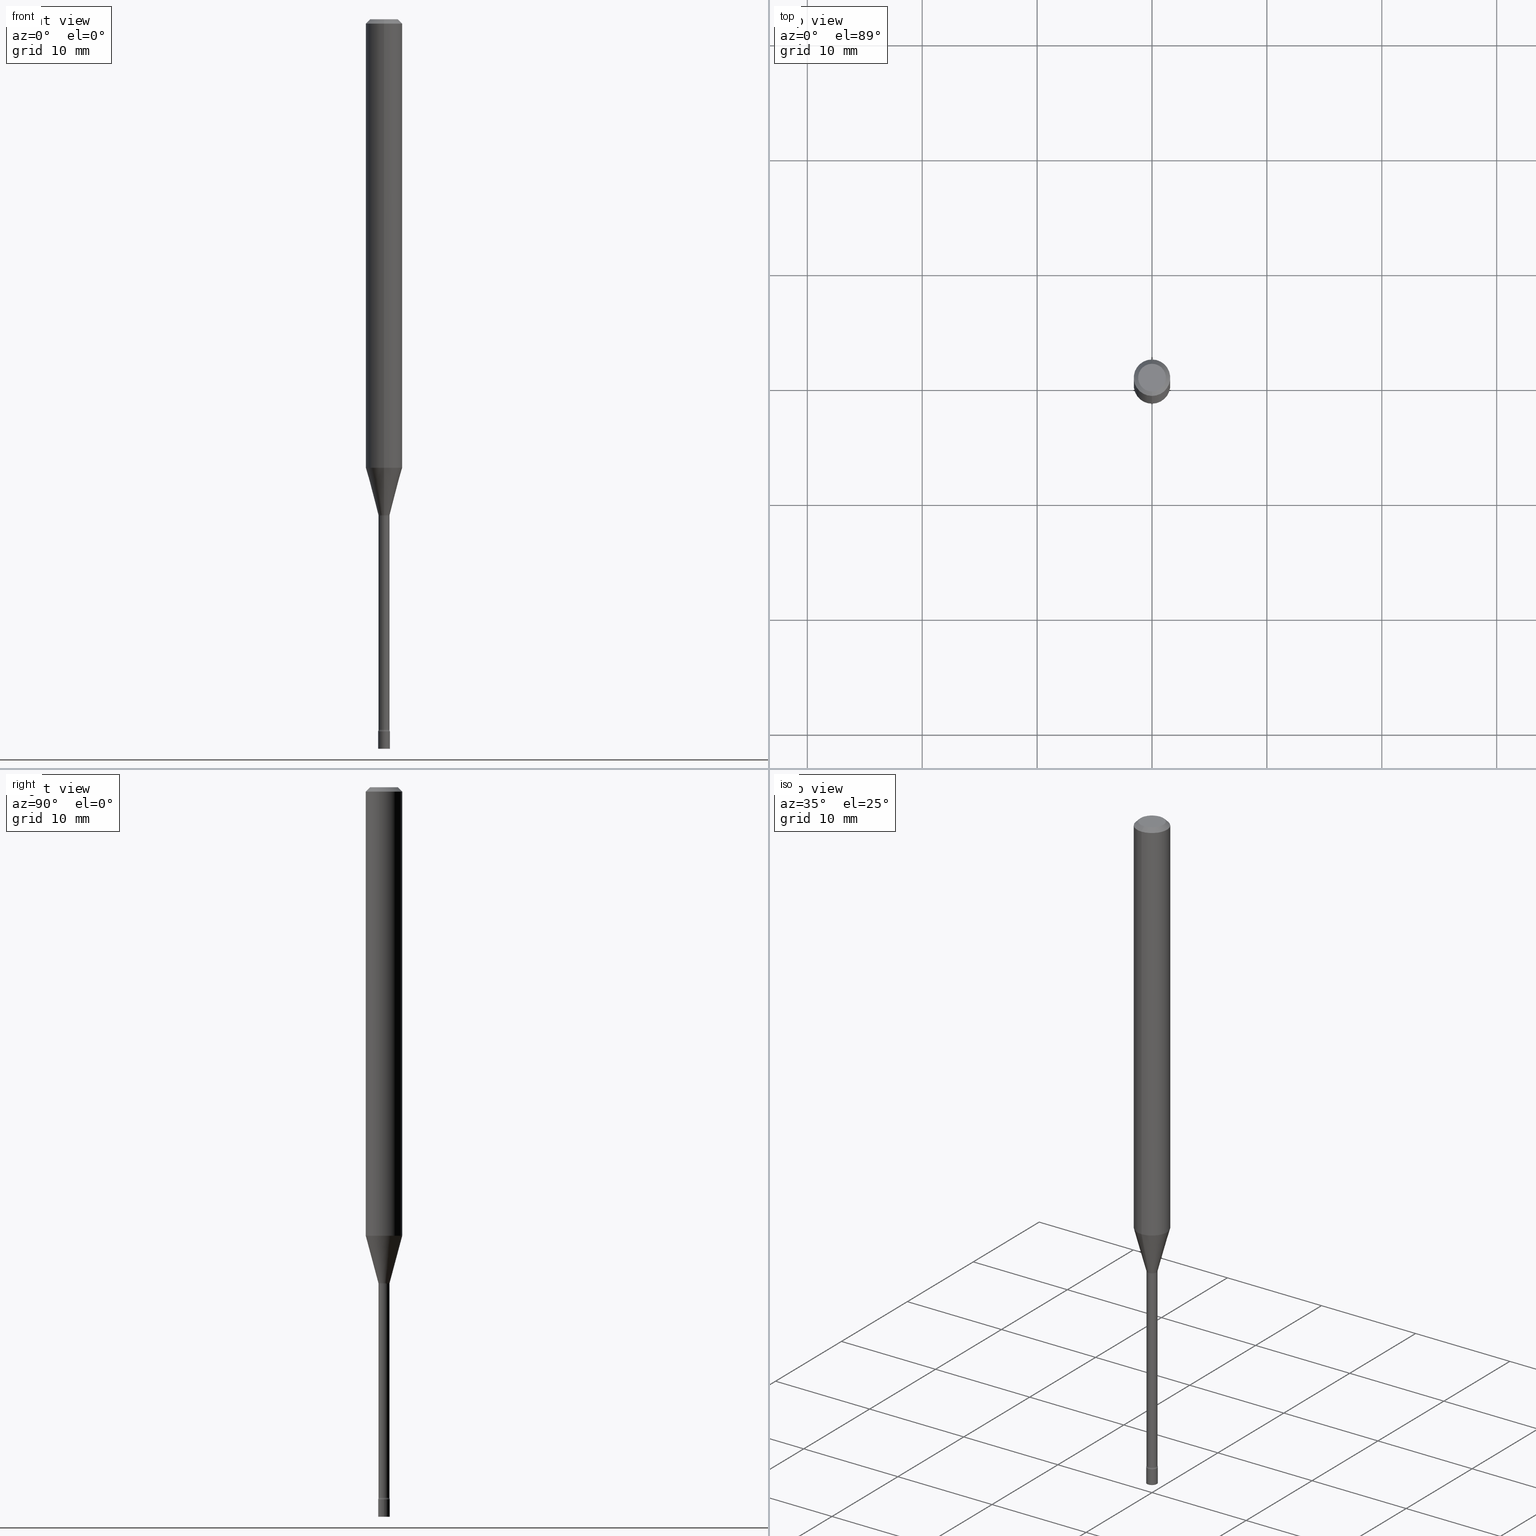
[diagram: canonical four-view strip — front | top / right | iso, engineering-drawing reading convention]
A machine part, canonical four-view strip (front | top / right | iso — engineering-drawing reading convention). The complete STEP part file that produces these views, byte-faithful:
ISO-10303-21;
HEADER;
FILE_DESCRIPTION (( 'STEP AP203' ),
    '1' );
FILE_NAME ('03650.STEP',
    '2024-03-08T22:21:16',
    ( '' ),
    ( '' ),
    'SwSTEP 2.0',
    'SolidWorks 2023',
    '' );
FILE_SCHEMA (( 'CONFIG_CONTROL_DESIGN' ));
ENDSEC;

DATA;
#1 = CARTESIAN_POINT ( 'NONE',  ( 2.401634446869740394E-16, 0.03379999999999159371, -2.434121224617320944 ) ) ;
#2 = ORIENTED_EDGE ( 'NONE', *, *, #63, .T. ) ;
#3 = ORIENTED_EDGE ( 'NONE', *, *, #240, .F. ) ;
#4 = EDGE_CURVE ( 'NONE', #278, #88, #257, .T. ) ;
#5 = CARTESIAN_POINT ( 'NONE',  ( 4.162051851151586637E-29, -5.942519755368827398E-15, -1.701974787463810923 ) ) ;
#6 = ORIENTED_EDGE ( 'NONE', *, *, #165, .F. ) ;
#7 = CARTESIAN_POINT ( 'NONE',  ( 1.396592535537864759E-16, 0.01999999999999127129, -2.500000000000000000 ) ) ;
#8 = VERTEX_POINT ( 'NONE', #252 ) ;
#9 = ADVANCED_FACE ( 'NONE', ( #419 ), #294, .T. ) ;
#10 = DIRECTION ( 'NONE',  ( -2.445425091962523904E-29, 3.491543940097986004E-15, 1.000000000000000000 ) ) ;
#11 = ORIENTED_EDGE ( 'NONE', *, *, #21, .T. ) ;
#12 = ADVANCED_FACE ( 'NONE', ( #423 ), #333, .T. ) ;
#13 = DIRECTION ( 'NONE',  ( 6.982962677686265922E-15, 1.000000000000000000, -3.491543940097986004E-15 ) ) ;
#14 = AXIS2_PLACEMENT_3D ( 'NONE', #158, #367, #443 ) ;
#15 = SECURITY_CLASSIFICATION ( '', '', #303 ) ;
#16 = APPROVAL_ROLE ( '' ) ;
#17 = LINE ( 'NONE', #64, #121 ) ;
#18 = PERSON_AND_ORGANIZATION ( #477, #407 ) ;
#19 = VERTEX_POINT ( 'NONE', #500 ) ;
#20 = APPLICATION_PROTOCOL_DEFINITION ( 'international standard', 'config_control_design', 1994, #109 ) ;
#21 = EDGE_CURVE ( 'NONE', #19, #8, #416, .T. ) ;
#22 = DIRECTION ( 'NONE',  ( -6.982962677686265922E-15, -1.000000000000000000, 3.491543940097985609E-15 ) ) ;
#23 = CIRCLE ( 'NONE', #86, 0.01500000000000001853 ) ;
#24 = CC_DESIGN_APPROVAL ( #73, ( #15 ) ) ;
#25 = CARTESIAN_POINT ( 'NONE',  ( 4.162126251656327251E-29, -5.942413209611424938E-15, -1.701974787463810923 ) ) ;
#26 = LINE ( 'NONE', #93, #269 ) ;
#27 = PERSON_AND_ORGANIZATION_ROLE ( 'creator' ) ;
#28 = APPROVAL_ROLE ( '' ) ;
#29 = CARTESIAN_POINT ( 'NONE',  ( 5.966943887091733341E-29, -8.519214466777275048E-15, -2.440000000000000391 ) ) ;
#30 = SHAPE_DEFINITION_REPRESENTATION ( #343, #453 ) ;
#31 = PLANE ( 'NONE',  #261 ) ;
#32 = AXIS2_PLACEMENT_3D ( 'NONE', #7, #204, #241 ) ;
#33 = AXIS2_PLACEMENT_3D ( 'NONE', #494, #292, #91 ) ;
#34 =( GEOMETRIC_REPRESENTATION_CONTEXT ( 3 ) GLOBAL_UNCERTAINTY_ASSIGNED_CONTEXT ( ( #221 ) ) GLOBAL_UNIT_ASSIGNED_CONTEXT ( ( #379, #61, #206 ) ) REPRESENTATION_CONTEXT ( 'NONE', 'WORKASPACE' ) );
#35 = DIRECTION ( 'NONE',  ( -2.445468806185136597E-29, 3.491481338843145583E-15, 1.000000000000000000 ) ) ;
#36 = EDGE_LOOP ( 'NONE', ( #48, #501, #403, #6 ) ) ;
#37 = EDGE_CURVE ( 'NONE', #193, #365, #26, .T. ) ;
#38 = CARTESIAN_POINT ( 'NONE',  ( 4.152558012344013964E-29, -5.928964584341181996E-15, -1.698092501787273001 ) ) ;
#39 = FACE_OUTER_BOUND ( 'NONE', #85, .T. ) ;
#40 = AXIS2_PLACEMENT_3D ( 'NONE', #182, #236, #192 ) ;
#41 = PRODUCT_DEFINITION_FORMATION_WITH_SPECIFIED_SOURCE ( 'ANY', '', #107, .NOT_KNOWN. ) ;
#42 = PLANE ( 'NONE',  #32 ) ;
#43 = EDGE_LOOP ( 'NONE', ( #155, #188 ) ) ;
#44 = CARTESIAN_POINT ( 'NONE',  ( 5.966837224388557990E-29, -8.519367213839086196E-15, -2.440000000000000391 ) ) ;
#45 = VERTEX_POINT ( 'NONE', #210 ) ;
#46 = EDGE_CURVE ( 'NONE', #159, #193, #212, .T. ) ;
#47 = DIRECTION ( 'NONE',  ( 7.105427357601005014E-15, 1.000000000000000000, 0.000000000000000000 ) ) ;
#48 = ORIENTED_EDGE ( 'NONE', *, *, #98, .T. ) ;
#49 = AXIS2_PLACEMENT_3D ( 'NONE', #96, #249, #386 ) ;
#50 = FACE_OUTER_BOUND ( 'NONE', #401, .T. ) ;
#51 = ORIENTED_EDGE ( 'NONE', *, *, #37, .T. ) ;
#52 = CARTESIAN_POINT ( 'NONE',  ( 3.668137637943792951E-31, -5.237315910146990666E-17, -0.01500000000000003067 ) ) ;
#53 = EDGE_CURVE ( 'NONE', #45, #491, #469, .T. ) ;
#54 = VERTEX_POINT ( 'NONE', #421 ) ;
#55 = DIRECTION ( 'NONE',  ( -2.445425091962523904E-29, 3.491543940097986004E-15, 1.000000000000000000 ) ) ;
#56 = ORIENTED_EDGE ( 'NONE', *, *, #186, .T. ) ;
#57 = DIRECTION ( 'NONE',  ( -2.445468806185136597E-29, 3.491481338843145583E-15, 1.000000000000000000 ) ) ;
#58 = DIRECTION ( 'NONE',  ( -2.445425091962523904E-29, 3.491543940097986004E-15, 1.000000000000000000 ) ) ;
#59 = CIRCLE ( 'NONE', #33, 0.01499999999999999771 ) ;
#60 = AXIS2_PLACEMENT_3D ( 'NONE', #139, #420, #136 ) ;
#61 =( NAMED_UNIT ( * ) PLANE_ANGLE_UNIT ( ) SI_UNIT ( $, .RADIAN. ) );
#62 = DIRECTION ( 'NONE',  ( -2.445425091962523904E-29, 3.491543940097986004E-15, 1.000000000000000000 ) ) ;
#63 = EDGE_CURVE ( 'NONE', #8, #128, #17, .T. ) ;
#64 = CARTESIAN_POINT ( 'NONE',  ( -1.312796983405021220E-16, -0.01880000000000004584, 6.564102607384229912E-17 ) ) ;
#65 = DIRECTION ( 'NONE',  ( -2.445425091962523904E-29, 3.491543940097986004E-15, 1.000000000000000000 ) ) ;
#66 = PERSON_AND_ORGANIZATION ( #477, #407 ) ;
#67 = EDGE_LOOP ( 'NONE', ( #317, #442, #459, #168 ) ) ;
#68 = ADVANCED_FACE ( 'NONE', ( #383 ), #259, .F. ) ;
#69 = DIRECTION ( 'NONE',  ( -6.982962677686265922E-15, -1.000000000000000000, 0.000000000000000000 ) ) ;
#70 = DIRECTION ( 'NONE',  ( -2.445425091962523904E-29, 3.491543940097986004E-15, 1.000000000000000000 ) ) ;
#71 = AXIS2_PLACEMENT_3D ( 'NONE', #517, #116, #510 ) ;
#72 = DIRECTION ( 'NONE',  ( -2.445425091962523904E-29, 3.491543940097986004E-15, 1.000000000000000000 ) ) ;
#73 = APPROVAL ( #389, 'UNSPECIFIED' ) ;
#74 = DIRECTION ( 'NONE',  ( -2.445425091962523904E-29, 3.491543940097986004E-15, 1.000000000000000000 ) ) ;
#75 = DIRECTION ( 'NONE',  ( 6.982962677686265922E-15, 1.000000000000000000, -3.483106191921935554E-15 ) ) ;
#76 = VECTOR ( 'NONE', #262, 39.37007874015748143 ) ;
#77 = AXIS2_PLACEMENT_3D ( 'NONE', #38, #74, #307 ) ;
#78 = CIRCLE ( 'NONE', #60, 0.06250000000000000000 ) ;
#79 = DIRECTION ( 'NONE',  ( 1.000000000000000000, -7.105427357601001070E-15, 4.926316275186346245E-29 ) ) ;
#80 = EDGE_CURVE ( 'NONE', #113, #88, #304, .T. ) ;
#81 = ORIENTED_EDGE ( 'NONE', *, *, #466, .F. ) ;
#82 = DIRECTION ( 'NONE',  ( 2.445425091962523904E-29, -3.491543940097986004E-15, -1.000000000000000000 ) ) ;
#83 = EDGE_LOOP ( 'NONE', ( #120, #111, #205, #326 ) ) ;
#84 = CARTESIAN_POINT ( 'NONE',  ( 5.952567525274821981E-29, -8.498688832233400382E-15, -2.434121224617320944 ) ) ;
#85 = EDGE_LOOP ( 'NONE', ( #228, #507, #484, #493 ) ) ;
#86 = AXIS2_PLACEMENT_3D ( 'NONE', #238, #359, #322 ) ;
#87 = DIRECTION ( 'NONE',  ( -2.445425091962523904E-29, 3.491543940097986004E-15, 1.000000000000000000 ) ) ;
#88 = VERTEX_POINT ( 'NONE', #505 ) ;
#89 = LINE ( 'NONE', #99, #169 ) ;
#90 = VERTEX_POINT ( 'NONE', #217 ) ;
#91 = DIRECTION ( 'NONE',  ( -6.982962677686266711E-15, -1.000000000000000000, 0.000000000000000000 ) ) ;
#92 = MANIFOLD_SOLID_BREP ( 'Body-Move/Copy2[2]', #424 ) ;
#93 = CARTESIAN_POINT ( 'NONE',  ( -4.364351673553916201E-16, -0.06250000000000000000, 2.182214962561241006E-16 ) ) ;
#94 = CARTESIAN_POINT ( 'NONE',  ( 6.113672015462842613E-29, -8.728703347107864943E-15, -2.500000000000000000 ) ) ;
#95 = AXIS2_PLACEMENT_3D ( 'NONE', #84, #197, #319 ) ;
#96 = CARTESIAN_POINT ( 'NONE',  ( 6.113672015462842613E-29, -8.728703347107864943E-15, -2.500000000000000000 ) ) ;
#97 = LOCAL_TIME ( 17, 21, 16.00000000000000000, #418 ) ;
#98 = EDGE_CURVE ( 'NONE', #54, #45, #502, .T. ) ;
#99 = CARTESIAN_POINT ( 'NONE',  ( 1.335820343228991607E-16, 0.01880000000000004584, -6.564102607384229912E-17 ) ) ;
#100 = CARTESIAN_POINT ( 'NONE',  ( -0.02000000000000000042, 1.421085471520200401E-16, -9.837870180509812545E-31 ) ) ;
#101 = ADVANCED_FACE ( 'NONE', ( #428 ), #341, .F. ) ;
#102 = APPROVAL_DATE_TIME ( #301, #150 ) ;
#103 = CARTESIAN_POINT ( 'NONE',  ( 5.952567525274821981E-29, -8.498688832233400382E-15, -2.434121224617320944 ) ) ;
#104 = ADVANCED_FACE ( 'NONE', ( #170 ), #414, .T. ) ;
#105 = DATE_AND_TIME ( #344, #337 ) ;
#106 = CARTESIAN_POINT ( 'NONE',  ( 4.364351673553919652E-16, 0.06249999999999995143, -0.01500000000000024751 ) ) ;
#107 = PRODUCT ( '03650', '03650', '', ( #497 ) ) ;
#108 = LINE ( 'NONE', #515, #330 ) ;
#109 = APPLICATION_CONTEXT ( 'configuration controlled 3d designs of mechanical parts and assemblies' ) ;
#110 = CARTESIAN_POINT ( 'NONE',  ( -4.364351673553541492E-16, -0.06250000000000538458, -1.536909379709239909 ) ) ;
#111 = ORIENTED_EDGE ( 'NONE', *, *, #438, .T. ) ;
#112 = FACE_OUTER_BOUND ( 'NONE', #134, .T. ) ;
#113 = VERTEX_POINT ( 'NONE', #181 ) ;
#114 = AXIS2_PLACEMENT_3D ( 'NONE', #363, #234, #126 ) ;
#115 = DIRECTION ( 'NONE',  ( -2.438088387897960049E-29, 3.491481338843145188E-15, 1.000000000000000000 ) ) ;
#116 = DIRECTION ( 'NONE',  ( -2.445425091962523904E-29, 3.491543940097986004E-15, 1.000000000000000000 ) ) ;
#117 = ORIENTED_EDGE ( 'NONE', *, *, #4, .T. ) ;
#118 = APPROVAL ( #219, 'UNSPECIFIED' ) ;
#119 = DIRECTION ( 'NONE',  ( -6.982962677686265922E-15, -1.000000000000000000, 0.000000000000000000 ) ) ;
#120 = ORIENTED_EDGE ( 'NONE', *, *, #186, .F. ) ;
#121 = VECTOR ( 'NONE', #138, 39.37007874015748143 ) ;
#122 = AXIS2_PLACEMENT_3D ( 'NONE', #29, #356, #190 ) ;
#123 = CIRCLE ( 'NONE', #436, 0.06250000000000000000 ) ;
#124 = CARTESIAN_POINT ( 'NONE',  ( 3.758396761213533964E-29, -5.366186631203552806E-15, -1.536909379709240131 ) ) ;
#125 = ORIENTED_EDGE ( 'NONE', *, *, #260, .T. ) ;
#126 = DIRECTION ( 'NONE',  ( 1.000000000000000000, -6.982962677686284065E-15, 0.000000000000000000 ) ) ;
#127 = APPLICATION_CONTEXT ( 'configuration controlled 3d designs of mechanical parts and assemblies' ) ;
#128 = VERTEX_POINT ( 'NONE', #270 ) ;
#129 = ADVANCED_FACE ( 'NONE', ( #350 ), #314, .T. ) ;
#130 = CARTESIAN_POINT ( 'NONE',  ( 0.000000000000000000, 0.000000000000000000, 0.000000000000000000 ) ) ;
#131 = ORIENTED_EDGE ( 'NONE', *, *, #46, .T. ) ;
#132 = AXIS2_PLACEMENT_3D ( 'NONE', #266, #70, #187 ) ;
#133 = CARTESIAN_POINT ( 'NONE',  ( 3.668137637943792951E-31, -5.237315910146990666E-17, -0.01500000000000003067 ) ) ;
#134 = EDGE_LOOP ( 'NONE', ( #163, #56, #131, #520 ) ) ;
#135 = DIRECTION ( 'NONE',  ( -6.982962677686265133E-15, -1.000000000000000000, 0.000000000000000000 ) ) ;
#136 = DIRECTION ( 'NONE',  ( -6.982962677686265922E-15, -1.000000000000000000, 3.483106191921935554E-15 ) ) ;
#137 = ADVANCED_FACE ( 'NONE', ( #431 ), #152, .T. ) ;
#138 = DIRECTION ( 'NONE',  ( -2.445425091962523904E-29, 3.491543940097986004E-15, 1.000000000000000000 ) ) ;
#139 = CARTESIAN_POINT ( 'NONE',  ( 3.668137637943792951E-31, -5.237315910146990666E-17, -0.01500000000000003067 ) ) ;
#140 = CARTESIAN_POINT ( 'NONE',  ( 5.952461119557742789E-29, -8.498841211276495713E-15, -2.434121224617320944 ) ) ;
#141 = APPROVAL_PERSON_ORGANIZATION ( #209, #150, #16 ) ;
#142 = CARTESIAN_POINT ( 'NONE',  ( 0.000000000000000000, 0.000000000000000000, 0.000000000000000000 ) ) ;
#143 = ADVANCED_FACE ( 'NONE', ( #112 ), #298, .T. ) ;
#144 = CARTESIAN_POINT ( 'NONE',  ( 3.316907271900976096E-16, 0.04749999999999999362, -1.803038058387863553E-16 ) ) ;
#145 = CARTESIAN_POINT ( 'NONE',  ( -1.348487785899068523E-16, -0.01931111260566991533, -1.698092501787273001 ) ) ;
#146 = EDGE_LOOP ( 'NONE', ( #412, #125 ) ) ;
#147 = CIRCLE ( 'NONE', #208, 0.01499999999999999771 ) ;
#148 = FACE_OUTER_BOUND ( 'NONE', #146, .T. ) ;
#149 = DIRECTION ( 'NONE',  ( -2.445425091962523904E-29, 3.491543940097986004E-15, 1.000000000000000000 ) ) ;
#150 = APPROVAL ( #411, 'UNSPECIFIED' ) ;
#151 = ORIENTED_EDGE ( 'NONE', *, *, #318, .F. ) ;
#152 = CYLINDRICAL_SURFACE ( 'NONE', #417, 0.06250000000000000000 ) ;
#153 = CIRCLE ( 'NONE', #434, 0.02000000000000000042 ) ;
#154 = CARTESIAN_POINT ( 'NONE',  ( 4.152558012344013964E-29, -5.928964584341181996E-15, -1.698092501787273001 ) ) ;
#155 = ORIENTED_EDGE ( 'NONE', *, *, #224, .T. ) ;
#156 = DIRECTION ( 'NONE',  ( -2.445425091962523904E-29, 3.491543940097986004E-15, 1.000000000000000000 ) ) ;
#157 = ORIENTED_EDGE ( 'NONE', *, *, #313, .F. ) ;
#158 = CARTESIAN_POINT ( 'NONE',  ( 1.396592535537849721E-16, 0.01999999999999147945, -2.440000000000000391 ) ) ;
#159 = VERTEX_POINT ( 'NONE', #145 ) ;
#160 = AXIS2_PLACEMENT_3D ( 'NONE', #352, #429, #69 ) ;
#161 = CC_DESIGN_SECURITY_CLASSIFICATION ( #15, ( #41 ) ) ;
#162 = DIRECTION ( 'NONE',  ( 7.105427357601000281E-15, 1.000000000000000000, 0.000000000000000000 ) ) ;
#163 = ORIENTED_EDGE ( 'NONE', *, *, #253, .F. ) ;
#164 = DIRECTION ( 'NONE',  ( -6.982962677686265922E-15, -1.000000000000000000, 4.370956789862821150E-15 ) ) ;
#165 = EDGE_CURVE ( 'NONE', #54, #248, #394, .T. ) ;
#166 = ORIENTED_EDGE ( 'NONE', *, *, #247, .T. ) ;
#167 = CARTESIAN_POINT ( 'NONE',  ( -3.773273898774340269E-16, -0.04749999999999999362, 1.369373997863902348E-16 ) ) ;
#168 = ORIENTED_EDGE ( 'NONE', *, *, #46, .F. ) ;
#169 = VECTOR ( 'NONE', #55, 39.37007874015748143 ) ;
#170 = FACE_OUTER_BOUND ( 'NONE', #354, .T. ) ;
#171 = CARTESIAN_POINT ( 'NONE',  ( 3.668137637943792951E-31, -5.237315910146990666E-17, -0.01500000000000003067 ) ) ;
#172 = DIRECTION ( 'NONE',  ( 4.937700262164548042E-15, 0.7071067811865451302, -0.7071067811865499042 ) ) ;
#173 = DIRECTION ( 'NONE',  ( -6.982962677686265922E-15, -1.000000000000000000, 3.483106191921935554E-15 ) ) ;
#174 = EDGE_LOOP ( 'NONE', ( #368, #267 ) ) ;
#175 = PERSON_AND_ORGANIZATION_ROLE ( 'design_owner' ) ;
#176 = AXIS2_PLACEMENT_3D ( 'NONE', #52, #486, #400 ) ;
#177 = CIRCLE ( 'NONE', #519, 0.02000000000000000042 ) ;
#178 = DATE_AND_TIME ( #214, #348 ) ;
#179 = ORIENTED_EDGE ( 'NONE', *, *, #224, .F. ) ;
#180 = PERSON_AND_ORGANIZATION_ROLE ( 'design_supplier' ) ;
#181 = CARTESIAN_POINT ( 'NONE',  ( 3.840629472727447874E-16, 0.04749999999999999362, -1.947592745229184119E-16 ) ) ;
#182 = CARTESIAN_POINT ( 'NONE',  ( 4.162126251656327251E-29, -5.942413209611424938E-15, -1.701974787463810923 ) ) ;
#183 = CIRCLE ( 'NONE', #485, 0.01879999999999999727 ) ;
#184 = CIRCLE ( 'NONE', #478, 0.01931111260566398605 ) ;
#185 = DESIGN_CONTEXT ( 'detailed design', #127, 'design' ) ;
#186 = EDGE_CURVE ( 'NONE', #265, #159, #184, .T. ) ;
#187 = DIRECTION ( 'NONE',  ( -6.982962677686266711E-15, -1.000000000000000000, 3.491543940097986398E-15 ) ) ;
#188 = ORIENTED_EDGE ( 'NONE', *, *, #240, .T. ) ;
#189 = CARTESIAN_POINT ( 'NONE',  ( 0.02000000000000000042, -1.396592535537253145E-16, 9.752353551591871936E-31 ) ) ;
#190 = DIRECTION ( 'NONE',  ( 1.000000000000000000, -6.982962677686284065E-15, 0.000000000000000000 ) ) ;
#191 = CIRCLE ( 'NONE', #122, 0.02000000000000000042 ) ;
#192 = DIRECTION ( 'NONE',  ( -6.982962677686265922E-15, -1.000000000000000000, 3.491543940097986004E-15 ) ) ;
#193 = VERTEX_POINT ( 'NONE', #110 ) ;
#194 = DIRECTION ( 'NONE',  ( -2.445425091962523904E-29, 3.491543940097986004E-15, 1.000000000000000000 ) ) ;
#195 = PERSON_AND_ORGANIZATION_ROLE ( 'classification_officer' ) ;
#196 = ORIENTED_EDGE ( 'NONE', *, *, #408, .T. ) ;
#197 = DIRECTION ( 'NONE',  ( -2.445425091962523904E-29, 3.491543940097986004E-15, 1.000000000000000000 ) ) ;
#198 = ORIENTED_EDGE ( 'NONE', *, *, #63, .F. ) ;
#199 = VECTOR ( 'NONE', #172, 39.37007874015748143 ) ;
#200 = CIRCLE ( 'NONE', #114, 0.02000000000000000042 ) ;
#201 = CC_DESIGN_APPROVAL ( #118, ( #41 ) ) ;
#202 = DIRECTION ( 'NONE',  ( -4.851104656540964275E-15, -0.7071067811865500152, -0.7071067811865450192 ) ) ;
#203 = ORIENTED_EDGE ( 'NONE', *, *, #21, .F. ) ;
#204 = DIRECTION ( 'NONE',  ( 2.438088387897960049E-29, -3.491481338843145188E-15, -1.000000000000000000 ) ) ;
#205 = ORIENTED_EDGE ( 'NONE', *, *, #297, .T. ) ;
#206 =( NAMED_UNIT ( * ) SI_UNIT ( $, .STERADIAN. ) SOLID_ANGLE_UNIT ( ) );
#207 = ORIENTED_EDGE ( 'NONE', *, *, #80, .F. ) ;
#208 = AXIS2_PLACEMENT_3D ( 'NONE', #1, #79, #162 ) ;
#209 = PERSON_AND_ORGANIZATION ( #477, #407 ) ;
#210 = CARTESIAN_POINT ( 'NONE',  ( -0.02000000000000000042, -8.481850359790549832E-15, -2.500000000000000000 ) ) ;
#211 = DIRECTION ( 'NONE',  ( 1.000000000000000000, 0.000000000000000000, 0.000000000000000000 ) ) ;
#212 = LINE ( 'NONE', #296, #364 ) ;
#213 = DIRECTION ( 'NONE',  ( -6.982962677686265922E-15, -1.000000000000000000, 3.491543940097986004E-15 ) ) ;
#214 = CALENDAR_DATE ( 2024, 8, 3 ) ;
#215 = EDGE_CURVE ( 'NONE', #159, #265, #503, .T. ) ;
#216 = CIRCLE ( 'NONE', #518, 0.01500000000000001853 ) ;
#217 = CARTESIAN_POINT ( 'NONE',  ( 1.421085471520796731E-16, 0.01999999999999147945, -2.440000000000000391 ) ) ;
#218 = CC_DESIGN_APPROVAL ( #150, ( #432 ) ) ;
#219 = APPROVAL_STATUS ( 'not_yet_approved' ) ;
#220 = CARTESIAN_POINT ( 'NONE',  ( 5.966837224388557990E-29, -8.519367213839086196E-15, -2.440000000000000391 ) ) ;
#221 = UNCERTAINTY_MEASURE_WITH_UNIT (LENGTH_MEASURE( 1.000000000000000082E-05 ), #379, 'distance_accuracy_value', 'NONE');
#222 = APPROVAL_DATE_TIME ( #509, #73 ) ;
#223 = CARTESIAN_POINT ( 'NONE',  ( 0.02000000000000000042, -8.658873720331001644E-15, -2.440000000000000391 ) ) ;
#224 = EDGE_CURVE ( 'NONE', #113, #447, #487, .T. ) ;
#225 = AXIS2_PLACEMENT_3D ( 'NONE', #140, #332, #135 ) ;
#226 = DIRECTION ( 'NONE',  ( -2.445425091962523904E-29, 3.491543940097986004E-15, 1.000000000000000000 ) ) ;
#227 = TOROIDAL_SURFACE ( 'NONE', #40, 0.03380000000000000365, 0.01500000000000002373 ) ;
#228 = ORIENTED_EDGE ( 'NONE', *, *, #438, .F. ) ;
#229 = LOCAL_TIME ( 17, 21, 16.00000000000000000, #268 ) ;
#230 = DIRECTION ( 'NONE',  ( -6.982962677686265922E-15, -1.000000000000000000, 0.000000000000000000 ) ) ;
#231 = DATE_AND_TIME ( #246, #291 ) ;
#232 = EDGE_CURVE ( 'NONE', #278, #193, #444, .T. ) ;
#233 = DIRECTION ( 'NONE',  ( -6.982962677686265922E-15, -1.000000000000000000, 4.370956789862821150E-15 ) ) ;
#234 = DIRECTION ( 'NONE',  ( -2.445468806185136597E-29, 3.491481338843145583E-15, 1.000000000000000000 ) ) ;
#235 = CIRCLE ( 'NONE', #512, 0.01880000000000009788 ) ;
#236 = DIRECTION ( 'NONE',  ( -2.445425091962523904E-29, 3.491543940097986004E-15, 1.000000000000000000 ) ) ;
#237 = EDGE_LOOP ( 'NONE', ( #196, #117, #315, #449 ) ) ;
#238 = CARTESIAN_POINT ( 'NONE',  ( -2.360241385057541503E-16, -0.03380000000000594335, -1.701974787463810923 ) ) ;
#239 = ORIENTED_EDGE ( 'NONE', *, *, #455, .T. ) ;
#240 = EDGE_CURVE ( 'NONE', #447, #113, #392, .T. ) ;
#241 = DIRECTION ( 'NONE',  ( -1.000000000000000000, 6.982962677686265922E-15, -4.876176775795935793E-29 ) ) ;
#242 = ORIENTED_EDGE ( 'NONE', *, *, #165, .T. ) ;
#243 = AXIS2_PLACEMENT_3D ( 'NONE', #133, #82, #75 ) ;
#244 = DIRECTION ( 'NONE',  ( -6.982962677686265922E-15, -1.000000000000000000, 3.491543940097986004E-15 ) ) ;
#245 = ORIENTED_EDGE ( 'NONE', *, *, #450, .F. ) ;
#246 = CALENDAR_DATE ( 2024, 8, 3 ) ;
#247 = EDGE_CURVE ( 'NONE', #274, #90, #454, .T. ) ;
#248 = VERTEX_POINT ( 'NONE', #223 ) ;
#249 = DIRECTION ( 'NONE',  ( -2.445468806185136597E-29, 3.491481338843145583E-15, 1.000000000000000000 ) ) ;
#250 = AXIS2_PLACEMENT_3D ( 'NONE', #311, #35, #470 ) ;
#251 = PERSON_AND_ORGANIZATION ( #477, #407 ) ;
#252 = CARTESIAN_POINT ( 'NONE',  ( -1.312796983404429574E-16, -0.01880000000000859456, -2.434121224617320944 ) ) ;
#253 = EDGE_CURVE ( 'NONE', #265, #278, #108, .T. ) ;
#254 = EDGE_LOOP ( 'NONE', ( #81, #11, #2, #285 ) ) ;
#255 = CC_DESIGN_PERSON_AND_ORGANIZATION_ASSIGNMENT ( #468, #195, ( #15 ) ) ;
#256 = FACE_OUTER_BOUND ( 'NONE', #83, .T. ) ;
#257 = LINE ( 'NONE', #380, #76 ) ;
#258 = APPROVAL_DATE_TIME ( #105, #118 ) ;
#259 = TOROIDAL_SURFACE ( 'NONE', #415, 0.03380000000000009386, 0.01499999999999999771 ) ;
#260 = EDGE_CURVE ( 'NONE', #491, #248, #191, .T. ) ;
#261 = AXIS2_PLACEMENT_3D ( 'NONE', #480, #115, #471 ) ;
#262 = DIRECTION ( 'NONE',  ( -2.445425091962523904E-29, 3.491543940097986004E-15, 1.000000000000000000 ) ) ;
#263 = DIRECTION ( 'NONE',  ( 1.839019923739597160E-15, 0.2588190451025245142, 0.9659258262890673130 ) ) ;
#264 = EDGE_CURVE ( 'NONE', #128, #452, #357, .T. ) ;
#265 = VERTEX_POINT ( 'NONE', #309 ) ;
#266 = CARTESIAN_POINT ( 'NONE',  ( 7.069953167250996319E-46, -1.009438081707148654E-31, -2.891093736826408239E-17 ) ) ;
#267 = ORIENTED_EDGE ( 'NONE', *, *, #455, .F. ) ;
#268 = COORDINATED_UNIVERSAL_TIME_OFFSET ( 5, 0, .BEHIND. ) ;
#269 = VECTOR ( 'NONE', #58, 39.37007874015748143 ) ;
#270 = CARTESIAN_POINT ( 'NONE',  ( -1.312796983404601645E-16, -0.01880000000000594043, -1.701974787463810923 ) ) ;
#271 = CONICAL_SURFACE ( 'NONE', #176, 0.06250000000000000000, 0.7853981633974483900 ) ;
#272 = AXIS2_PLACEMENT_3D ( 'NONE', #331, #456, #211 ) ;
#273 = DIRECTION ( 'NONE',  ( -2.445468806185136597E-29, 3.491481338843145583E-15, 1.000000000000000000 ) ) ;
#274 = VERTEX_POINT ( 'NONE', #475 ) ;
#275 = CARTESIAN_POINT ( 'NONE',  ( 3.758396761213533964E-29, -5.366186631203552806E-15, -1.536909379709240131 ) ) ;
#276 = CARTESIAN_POINT ( 'NONE',  ( -4.287811248607203282E-16, -0.06250000000000005551, -0.01499999999999981209 ) ) ;
#277 = ADVANCED_FACE ( 'NONE', ( #148 ), #31, .T. ) ;
#278 = VERTEX_POINT ( 'NONE', #396 ) ;
#279 = CIRCLE ( 'NONE', #384, 0.06250000000000000000 ) ;
#280 = CARTESIAN_POINT ( 'NONE',  ( -4.364351673553912750E-16, -0.06250000000000005551, -0.01499999999999981209 ) ) ;
#281 = MANIFOLD_SOLID_BREP ( 'Body-Move/Copy2[1]', #511 ) ;
#282 = ADVANCED_FACE ( 'NONE', ( #39 ), #227, .F. ) ;
#283 = ORIENTED_EDGE ( 'NONE', *, *, #4, .F. ) ;
#284 = PLANE ( 'NONE',  #14 ) ;
#285 = ORIENTED_EDGE ( 'NONE', *, *, #297, .F. ) ;
#286 = ADVANCED_FACE ( 'NONE', ( #390 ), #366, .T. ) ;
#287 = FACE_OUTER_BOUND ( 'NONE', #370, .T. ) ;
#288 = EDGE_LOOP ( 'NONE', ( #283, #405, #51, #467 ) ) ;
#289 = AXIS2_PLACEMENT_3D ( 'NONE', #345, #226, #439 ) ;
#290 = CC_DESIGN_PERSON_AND_ORGANIZATION_ASSIGNMENT ( #427, #27, ( #41 ) ) ;
#291 = LOCAL_TIME ( 17, 21, 16.00000000000000000, #514 ) ;
#292 = DIRECTION ( 'NONE',  ( -1.000000000000000000, 6.982962677686265922E-15, -4.883557194083112340E-29 ) ) ;
#293 = ORIENTED_EDGE ( 'NONE', *, *, #481, .T. ) ;
#294 = CYLINDRICAL_SURFACE ( 'NONE', #462, 0.06250000000000000000 ) ;
#295 = DIRECTION ( 'NONE',  ( -2.445425091962523904E-29, 3.491543940097986004E-15, 1.000000000000000000 ) ) ;
#296 = CARTESIAN_POINT ( 'NONE',  ( -1.348487785899068523E-16, -0.01931111260566991533, -1.698092501787273001 ) ) ;
#297 = EDGE_CURVE ( 'NONE', #452, #128, #183, .T. ) ;
#298 = CONICAL_SURFACE ( 'NONE', #77, 0.01931111260566398605, 0.2617993877991497964 ) ;
#299 = CARTESIAN_POINT ( 'NONE',  ( -0.02000000000000000042, -8.481850359790549832E-15, -2.440000000000000391 ) ) ;
#300 = EDGE_LOOP ( 'NONE', ( #498, #488 ) ) ;
#301 = DATE_AND_TIME ( #504, #97 ) ;
#302 = ORIENTED_EDGE ( 'NONE', *, *, #313, .T. ) ;
#303 = SECURITY_CLASSIFICATION_LEVEL ( 'unclassified' ) ;
#304 = LINE ( 'NONE', #106, #199 ) ;
#305 = ADVANCED_FACE ( 'NONE', ( #316 ), #42, .T. ) ;
#306 = TOROIDAL_SURFACE ( 'NONE', #95, 0.03380000000000009386, 0.01499999999999999771 ) ;
#307 = DIRECTION ( 'NONE',  ( -6.982962677686265922E-15, -1.000000000000000000, 0.000000000000000000 ) ) ;
#308 = DIRECTION ( 'NONE',  ( -2.445468806185136877E-29, 3.491481338843145188E-15, 1.000000000000000000 ) ) ;
#309 = CARTESIAN_POINT ( 'NONE',  ( 2.906514588320701631E-16, 0.01931111260565805676, -1.698092501787273001 ) ) ;
#310 = ORIENTED_EDGE ( 'NONE', *, *, #349, .F. ) ;
#311 = CARTESIAN_POINT ( 'NONE',  ( 0.000000000000000000, 0.000000000000000000, 0.000000000000000000 ) ) ;
#312 = AXIS2_PLACEMENT_3D ( 'NONE', #220, #395, #513 ) ;
#313 = EDGE_CURVE ( 'NONE', #19, #90, #147, .T. ) ;
#314 = CYLINDRICAL_SURFACE ( 'NONE', #425, 0.02000000000000000042 ) ;
#315 = ORIENTED_EDGE ( 'NONE', *, *, #481, .F. ) ;
#316 = FACE_OUTER_BOUND ( 'NONE', #174, .T. ) ;
#317 = ORIENTED_EDGE ( 'NONE', *, *, #215, .T. ) ;
#318 = EDGE_CURVE ( 'NONE', #447, #365, #397, .T. ) ;
#319 = DIRECTION ( 'NONE',  ( -6.982962677686265922E-15, -1.000000000000000000, 3.491543940097986004E-15 ) ) ;
#320 = EDGE_LOOP ( 'NONE', ( #157, #310, #351, #166 ) ) ;
#321 = VECTOR ( 'NONE', #202, 39.37007874015748143 ) ;
#322 = DIRECTION ( 'NONE',  ( -6.982962677686267499E-15, -1.000000000000000000, 0.000000000000000000 ) ) ;
#323 = EDGE_LOOP ( 'NONE', ( #3, #445, #293, #207 ) ) ;
#324 = DIMENSIONAL_EXPONENTS ( 1.000000000000000000, 0.000000000000000000, 0.000000000000000000, 0.000000000000000000, 0.000000000000000000, 0.000000000000000000, 0.000000000000000000 ) ;
#325 = CARTESIAN_POINT ( 'NONE',  ( 4.152558012344013964E-29, -5.928964584341181996E-15, -1.698092501787273001 ) ) ;
#326 = ORIENTED_EDGE ( 'NONE', *, *, #358, .F. ) ;
#327 = ADVANCED_FACE ( 'NONE', ( #287 ), #271, .T. ) ;
#328 = DIRECTION ( 'NONE',  ( -6.982962677686265133E-15, -1.000000000000000000, 0.000000000000000000 ) ) ;
#329 = ORIENTED_EDGE ( 'NONE', *, *, #80, .T. ) ;
#330 = VECTOR ( 'NONE', #263, 39.37007874015748143 ) ;
#331 = CARTESIAN_POINT ( 'NONE',  ( 0.000000000000000000, 0.000000000000000000, 0.000000000000000000 ) ) ;
#332 = DIRECTION ( 'NONE',  ( -2.445425091962523904E-29, 3.491543940097986004E-15, 1.000000000000000000 ) ) ;
#333 = CYLINDRICAL_SURFACE ( 'NONE', #476, 0.01880000000000004584 ) ;
#334 = CC_DESIGN_DATE_AND_TIME_ASSIGNMENT ( #231, #474, ( #15 ) ) ;
#335 = DIRECTION ( 'NONE',  ( -1.807323732225326984E-15, -0.2588190451025177419, 0.9659258262890690894 ) ) ;
#336 = CONICAL_SURFACE ( 'NONE', #406, 0.01931111260566398605, 0.2617993877991497964 ) ;
#337 = LOCAL_TIME ( 17, 21, 16.00000000000000000, #508 ) ;
#338 = APPLICATION_PROTOCOL_DEFINITION ( 'international standard', 'config_control_design', 1994, #127 ) ;
#339 = DIRECTION ( 'NONE',  ( -2.445468806185136877E-29, 3.491481338843145188E-15, 1.000000000000000000 ) ) ;
#340 = CARTESIAN_POINT ( 'NONE',  ( 1.335820343229586704E-16, 0.01879999999999405758, -1.701974787463810923 ) ) ;
#341 = PLANE ( 'NONE',  #374 ) ;
#342 = PRODUCT_RELATED_PRODUCT_CATEGORY ( 'detail', '', ( #107 ) ) ;
#343 = PRODUCT_DEFINITION_SHAPE ( 'NONE', 'NONE',  #432 ) ;
#344 = CALENDAR_DATE ( 2024, 8, 3 ) ;
#345 = CARTESIAN_POINT ( 'NONE',  ( 7.069953167250996319E-46, -1.009438081707148654E-31, -2.891093736826408239E-17 ) ) ;
#346 = AXIS2_PLACEMENT_3D ( 'NONE', #130, #87, #244 ) ;
#347 = DIRECTION ( 'NONE',  ( -6.982962677686265922E-15, -1.000000000000000000, 3.491543940097985609E-15 ) ) ;
#348 = LOCAL_TIME ( 17, 21, 16.00000000000000000, #422 ) ;
#349 = EDGE_CURVE ( 'NONE', #8, #19, #235, .T. ) ;
#350 = FACE_OUTER_BOUND ( 'NONE', #36, .T. ) ;
#351 = ORIENTED_EDGE ( 'NONE', *, *, #450, .T. ) ;
#352 = CARTESIAN_POINT ( 'NONE',  ( 4.162051851151586637E-29, -5.942519755368827398E-15, -1.701974787463810923 ) ) ;
#353 = CC_DESIGN_PERSON_AND_ORGANIZATION_ASSIGNMENT ( #381, #175, ( #107 ) ) ;
#354 = EDGE_LOOP ( 'NONE', ( #495, #239, #242, #362 ) ) ;
#355 = PERSON_AND_ORGANIZATION ( #477, #407 ) ;
#356 = DIRECTION ( 'NONE',  ( -2.445468806185136597E-29, 3.491481338843145583E-15, 1.000000000000000000 ) ) ;
#357 = CIRCLE ( 'NONE', #160, 0.01879999999999999727 ) ;
#358 = EDGE_CURVE ( 'NONE', #159, #128, #23, .T. ) ;
#359 = DIRECTION ( 'NONE',  ( -1.000000000000000000, 6.982962677686265922E-15, -4.883557194083112340E-29 ) ) ;
#360 = ORIENTED_EDGE ( 'NONE', *, *, #264, .F. ) ;
#361 = FACE_OUTER_BOUND ( 'NONE', #320, .T. ) ;
#362 = ORIENTED_EDGE ( 'NONE', *, *, #260, .F. ) ;
#363 = CARTESIAN_POINT ( 'NONE',  ( 5.966943887091733341E-29, -8.519214466777275048E-15, -2.440000000000000391 ) ) ;
#364 = VECTOR ( 'NONE', #335, 39.37007874015748143 ) ;
#365 = VERTEX_POINT ( 'NONE', #280 ) ;
#366 = CONICAL_SURFACE ( 'NONE', #243, 0.06250000000000000000, 0.7853981633974483900 ) ;
#367 = DIRECTION ( 'NONE',  ( -2.445425091962523624E-29, 3.491543940097986004E-15, 1.000000000000000000 ) ) ;
#368 = ORIENTED_EDGE ( 'NONE', *, *, #98, .F. ) ;
#369 = DIRECTION ( 'NONE',  ( -2.445425091962523904E-29, 3.491543940097986004E-15, 1.000000000000000000 ) ) ;
#370 = EDGE_LOOP ( 'NONE', ( #151, #179, #329, #410 ) ) ;
#371 = DIRECTION ( 'NONE',  ( -6.982962677686265922E-15, -1.000000000000000000, 3.491543940097986004E-15 ) ) ;
#372 = DIRECTION ( 'NONE',  ( 2.445425091962523624E-29, -3.491543940097986004E-15, -1.000000000000000000 ) ) ;
#373 = EDGE_CURVE ( 'NONE', #90, #274, #153, .T. ) ;
#374 = AXIS2_PLACEMENT_3D ( 'NONE', #144, #372, #13 ) ;
#375 = TOROIDAL_SURFACE ( 'NONE', #426, 0.03380000000000000365, 0.01500000000000002373 ) ;
#376 = LENGTH_MEASURE_WITH_UNIT ( LENGTH_MEASURE( 0.02539999999999999897 ), #460 );
#377 = CARTESIAN_POINT ( 'NONE',  ( 0.000000000000000000, 0.000000000000000000, 0.000000000000000000 ) ) ;
#378 = EDGE_CURVE ( 'NONE', #248, #491, #200, .T. ) ;
#379 =( CONVERSION_BASED_UNIT ( 'INCH', #376 ) LENGTH_UNIT ( ) NAMED_UNIT ( #324 ) );
#380 = CARTESIAN_POINT ( 'NONE',  ( 4.440892098500625669E-16, 0.06250000000000000000, -2.182214962561241006E-16 ) ) ;
#381 = PERSON_AND_ORGANIZATION ( #477, #407 ) ;
#382 = ADVANCED_FACE ( 'NONE', ( #448 ), #284, .F. ) ;
#383 = FACE_OUTER_BOUND ( 'NONE', #473, .T. ) ;
#384 = AXIS2_PLACEMENT_3D ( 'NONE', #124, #156, #164 ) ;
#385 = DIRECTION ( 'NONE',  ( -2.445425091962523904E-29, 3.491543940097986004E-15, 1.000000000000000000 ) ) ;
#386 = DIRECTION ( 'NONE',  ( 1.000000000000000000, -6.982962677686284065E-15, 0.000000000000000000 ) ) ;
#387 = CC_DESIGN_PERSON_AND_ORGANIZATION_ASSIGNMENT ( #251, #499, ( #432 ) ) ;
#388 = APPROVAL_ROLE ( '' ) ;
#389 = APPROVAL_STATUS ( 'not_yet_approved' ) ;
#390 = FACE_OUTER_BOUND ( 'NONE', #323, .T. ) ;
#391 = DIRECTION ( 'NONE',  ( -2.445425091962523904E-29, 3.491543940097986004E-15, 1.000000000000000000 ) ) ;
#392 = CIRCLE ( 'NONE', #132, 0.04749999999999999362 ) ;
#393 = APPROVAL_PERSON_ORGANIZATION ( #18, #118, #388 ) ;
#394 = LINE ( 'NONE', #189, #398 ) ;
#395 = DIRECTION ( 'NONE',  ( -2.445425091962523904E-29, 3.491543940097986004E-15, 1.000000000000000000 ) ) ;
#396 = CARTESIAN_POINT ( 'NONE',  ( 4.440892098500999885E-16, 0.06249999999999461542, -1.536909379709240575 ) ) ;
#397 = LINE ( 'NONE', #276, #321 ) ;
#398 = VECTOR ( 'NONE', #308, 39.37007874015748143 ) ;
#399 = ADVANCED_FACE ( 'NONE', ( #361 ), #306, .F. ) ;
#400 = DIRECTION ( 'NONE',  ( 6.982962677686265922E-15, 1.000000000000000000, -3.483106191921935554E-15 ) ) ;
#401 = EDGE_LOOP ( 'NONE', ( #516, #457, #360, #198 ) ) ;
#402 = DIRECTION ( 'NONE',  ( 1.000000000000000000, -7.105427357601001070E-15, 4.926316275186346245E-29 ) ) ;
#403 = ORIENTED_EDGE ( 'NONE', *, *, #378, .F. ) ;
#404 = FACE_OUTER_BOUND ( 'NONE', #67, .T. ) ;
#405 = ORIENTED_EDGE ( 'NONE', *, *, #232, .T. ) ;
#406 = AXIS2_PLACEMENT_3D ( 'NONE', #325, #10, #119 ) ;
#407 = ORGANIZATION ( 'UNSPECIFIED', 'UNSPECIFIED', '' ) ;
#408 = EDGE_CURVE ( 'NONE', #193, #278, #279, .T. ) ;
#409 = DIRECTION ( 'NONE',  ( -6.982962677686265922E-15, -1.000000000000000000, 0.000000000000000000 ) ) ;
#410 = ORIENTED_EDGE ( 'NONE', *, *, #472, .T. ) ;
#411 = APPROVAL_STATUS ( 'not_yet_approved' ) ;
#412 = ORIENTED_EDGE ( 'NONE', *, *, #378, .T. ) ;
#413 = ADVANCED_FACE ( 'NONE', ( #404 ), #336, .T. ) ;
#414 = CYLINDRICAL_SURFACE ( 'NONE', #250, 0.02000000000000000042 ) ;
#415 = AXIS2_PLACEMENT_3D ( 'NONE', #103, #65, #461 ) ;
#416 = CIRCLE ( 'NONE', #225, 0.01880000000000009788 ) ;
#417 = AXIS2_PLACEMENT_3D ( 'NONE', #441, #149, #347 ) ;
#418 = COORDINATED_UNIVERSAL_TIME_OFFSET ( 5, 0, .BEHIND. ) ;
#419 = FACE_OUTER_BOUND ( 'NONE', #237, .T. ) ;
#420 = DIRECTION ( 'NONE',  ( -2.445425091962523904E-29, 3.491543940097986004E-15, 1.000000000000000000 ) ) ;
#421 = CARTESIAN_POINT ( 'NONE',  ( 0.02000000000000000042, -8.868362600661589961E-15, -2.500000000000000000 ) ) ;
#422 = COORDINATED_UNIVERSAL_TIME_OFFSET ( 5, 0, .BEHIND. ) ;
#423 = FACE_OUTER_BOUND ( 'NONE', #254, .T. ) ;
#424 = CLOSED_SHELL ( 'NONE', ( #496, #440, #68, #286, #9, #413, #143, #137, #327, #101, #382, #399, #12, #282 ) ) ;
#425 = AXIS2_PLACEMENT_3D ( 'NONE', #482, #273, #437 ) ;
#426 = AXIS2_PLACEMENT_3D ( 'NONE', #25, #385, #371 ) ;
#427 = PERSON_AND_ORGANIZATION ( #477, #407 ) ;
#428 = FACE_OUTER_BOUND ( 'NONE', #43, .T. ) ;
#429 = DIRECTION ( 'NONE',  ( -2.445425091962523904E-29, 3.491543940097986004E-15, 1.000000000000000000 ) ) ;
#430 = ORIENTED_EDGE ( 'NONE', *, *, #373, .T. ) ;
#431 = FACE_OUTER_BOUND ( 'NONE', #288, .T. ) ;
#432 = PRODUCT_DEFINITION ( 'UNKNOWN', '', #41, #185 ) ;
#433 = VECTOR ( 'NONE', #339, 39.37007874015748143 ) ;
#434 = AXIS2_PLACEMENT_3D ( 'NONE', #44, #451, #489 ) ;
#435 = CALENDAR_DATE ( 2024, 8, 3 ) ;
#436 = AXIS2_PLACEMENT_3D ( 'NONE', #171, #295, #173 ) ;
#437 = DIRECTION ( 'NONE',  ( 1.000000000000000000, -6.982962677686265922E-15, 4.876176775795935793E-29 ) ) ;
#438 = EDGE_CURVE ( 'NONE', #265, #452, #216, .T. ) ;
#439 = DIRECTION ( 'NONE',  ( -6.982962677686266711E-15, -1.000000000000000000, 3.491543940097986398E-15 ) ) ;
#440 = ADVANCED_FACE ( 'NONE', ( #50 ), #492, .T. ) ;
#441 = CARTESIAN_POINT ( 'NONE',  ( 0.000000000000000000, 0.000000000000000000, 0.000000000000000000 ) ) ;
#442 = ORIENTED_EDGE ( 'NONE', *, *, #253, .T. ) ;
#443 = DIRECTION ( 'NONE',  ( -6.982962677686265922E-15, -1.000000000000000000, 3.491543940097986004E-15 ) ) ;
#444 = CIRCLE ( 'NONE', #463, 0.06250000000000000000 ) ;
#445 = ORIENTED_EDGE ( 'NONE', *, *, #318, .T. ) ;
#446 = CARTESIAN_POINT ( 'NONE',  ( 2.401634446869554519E-16, 0.03379999999999405702, -1.701974787463810923 ) ) ;
#447 = VERTEX_POINT ( 'NONE', #167 ) ;
#448 = FACE_OUTER_BOUND ( 'NONE', #300, .T. ) ;
#449 = ORIENTED_EDGE ( 'NONE', *, *, #37, .F. ) ;
#450 = EDGE_CURVE ( 'NONE', #8, #274, #59, .T. ) ;
#451 = DIRECTION ( 'NONE',  ( -2.445425091962523904E-29, 3.491543940097986004E-15, 1.000000000000000000 ) ) ;
#452 = VERTEX_POINT ( 'NONE', #340 ) ;
#453 = ADVANCED_BREP_SHAPE_REPRESENTATION ( '03650', ( #281, #92, #272 ), #34 ) ;
#454 = CIRCLE ( 'NONE', #312, 0.02000000000000000042 ) ;
#455 = EDGE_CURVE ( 'NONE', #45, #54, #177, .T. ) ;
#456 = DIRECTION ( 'NONE',  ( 0.000000000000000000, 0.000000000000000000, 1.000000000000000000 ) ) ;
#457 = ORIENTED_EDGE ( 'NONE', *, *, #466, .T. ) ;
#458 = CC_DESIGN_PERSON_AND_ORGANIZATION_ASSIGNMENT ( #66, #180, ( #41 ) ) ;
#459 = ORIENTED_EDGE ( 'NONE', *, *, #408, .F. ) ;
#460 =( LENGTH_UNIT ( ) NAMED_UNIT ( * ) SI_UNIT ( $, .METRE. ) );
#461 = DIRECTION ( 'NONE',  ( -6.982962677686265922E-15, -1.000000000000000000, 3.491543940097986004E-15 ) ) ;
#462 = AXIS2_PLACEMENT_3D ( 'NONE', #377, #465, #22 ) ;
#463 = AXIS2_PLACEMENT_3D ( 'NONE', #275, #391, #233 ) ;
#464 = DIRECTION ( 'NONE',  ( 1.000000000000000000, -6.982962677686284065E-15, 0.000000000000000000 ) ) ;
#465 = DIRECTION ( 'NONE',  ( -2.445425091962523904E-29, 3.491543940097986004E-15, 1.000000000000000000 ) ) ;
#466 = EDGE_CURVE ( 'NONE', #19, #452, #89, .T. ) ;
#467 = ORIENTED_EDGE ( 'NONE', *, *, #472, .F. ) ;
#468 = PERSON_AND_ORGANIZATION ( #477, #407 ) ;
#469 = LINE ( 'NONE', #100, #433 ) ;
#470 = DIRECTION ( 'NONE',  ( 1.000000000000000000, -6.982962677686265922E-15, 4.876176775795935793E-29 ) ) ;
#471 = DIRECTION ( 'NONE',  ( 1.000000000000000000, -6.982962677686265922E-15, 4.876176775795935793E-29 ) ) ;
#472 = EDGE_CURVE ( 'NONE', #88, #365, #78, .T. ) ;
#473 = EDGE_LOOP ( 'NONE', ( #203, #302, #430, #245 ) ) ;
#474 = DATE_TIME_ROLE ( 'classification_date' ) ;
#475 = CARTESIAN_POINT ( 'NONE',  ( -1.396592535536656322E-16, -0.02000000000000852138, -2.440000000000000391 ) ) ;
#476 = AXIS2_PLACEMENT_3D ( 'NONE', #142, #62, #213 ) ;
#477 = PERSON ( 'UNSPECIFIED', 'UNSPECIFIED', 'UNSPECIFIED', ('UNSPECIFIED'), ('UNSPECIFIED'), ('UNSPECIFIED') ) ;
#478 = AXIS2_PLACEMENT_3D ( 'NONE', #154, #72, #230 ) ;
#479 = APPROVAL_PERSON_ORGANIZATION ( #355, #73, #28 ) ;
#480 = CARTESIAN_POINT ( 'NONE',  ( 5.966943887091733341E-29, -8.519214466777275048E-15, -2.440000000000000391 ) ) ;
#481 = EDGE_CURVE ( 'NONE', #365, #88, #123, .T. ) ;
#482 = CARTESIAN_POINT ( 'NONE',  ( 0.000000000000000000, 0.000000000000000000, 0.000000000000000000 ) ) ;
#483 = CARTESIAN_POINT ( 'NONE',  ( 5.952461119557742789E-29, -8.498841211276495713E-15, -2.434121224617320944 ) ) ;
#484 = ORIENTED_EDGE ( 'NONE', *, *, #358, .T. ) ;
#485 = AXIS2_PLACEMENT_3D ( 'NONE', #5, #194, #409 ) ;
#486 = DIRECTION ( 'NONE',  ( 2.445425091962523904E-29, -3.491543940097986004E-15, -1.000000000000000000 ) ) ;
#487 = CIRCLE ( 'NONE', #289, 0.04749999999999999362 ) ;
#488 = ORIENTED_EDGE ( 'NONE', *, *, #373, .F. ) ;
#489 = DIRECTION ( 'NONE',  ( -6.982962677686265922E-15, -1.000000000000000000, 0.000000000000000000 ) ) ;
#490 = CC_DESIGN_DATE_AND_TIME_ASSIGNMENT ( #178, #506, ( #432 ) ) ;
#491 = VERTEX_POINT ( 'NONE', #299 ) ;
#492 = CYLINDRICAL_SURFACE ( 'NONE', #346, 0.01880000000000004584 ) ;
#493 = ORIENTED_EDGE ( 'NONE', *, *, #264, .T. ) ;
#494 = CARTESIAN_POINT ( 'NONE',  ( -2.360241385057368940E-16, -0.03380000000000859400, -2.434121224617320944 ) ) ;
#495 = ORIENTED_EDGE ( 'NONE', *, *, #53, .F. ) ;
#496 = ADVANCED_FACE ( 'NONE', ( #256 ), #375, .F. ) ;
#497 = MECHANICAL_CONTEXT ( 'NONE', #109, 'mechanical' ) ;
#498 = ORIENTED_EDGE ( 'NONE', *, *, #247, .F. ) ;
#499 = PERSON_AND_ORGANIZATION_ROLE ( 'creator' ) ;
#500 = CARTESIAN_POINT ( 'NONE',  ( 1.378452907375193196E-16, 0.01879999999999159774, -2.434121224617320944 ) ) ;
#501 = ORIENTED_EDGE ( 'NONE', *, *, #53, .T. ) ;
#502 = CIRCLE ( 'NONE', #49, 0.02000000000000000042 ) ;
#503 = CIRCLE ( 'NONE', #71, 0.01931111260566398605 ) ;
#504 = CALENDAR_DATE ( 2024, 8, 3 ) ;
#505 = CARTESIAN_POINT ( 'NONE',  ( 4.440892098501004815E-16, 0.06249999999999995143, -0.01500000000000024751 ) ) ;
#506 = DATE_TIME_ROLE ( 'creation_date' ) ;
#507 = ORIENTED_EDGE ( 'NONE', *, *, #215, .F. ) ;
#508 = COORDINATED_UNIVERSAL_TIME_OFFSET ( 5, 0, .BEHIND. ) ;
#509 = DATE_AND_TIME ( #435, #229 ) ;
#510 = DIRECTION ( 'NONE',  ( -6.982962677686265922E-15, -1.000000000000000000, 0.000000000000000000 ) ) ;
#511 = CLOSED_SHELL ( 'NONE', ( #129, #277, #104, #305 ) ) ;
#512 = AXIS2_PLACEMENT_3D ( 'NONE', #483, #369, #328 ) ;
#513 = DIRECTION ( 'NONE',  ( -6.982962677686265922E-15, -1.000000000000000000, 0.000000000000000000 ) ) ;
#514 = COORDINATED_UNIVERSAL_TIME_OFFSET ( 5, 0, .BEHIND. ) ;
#515 = CARTESIAN_POINT ( 'NONE',  ( 1.372137078140399433E-16, 0.01931111260565805676, -1.698092501787273001 ) ) ;
#516 = ORIENTED_EDGE ( 'NONE', *, *, #349, .T. ) ;
#517 = CARTESIAN_POINT ( 'NONE',  ( 4.152558012344013964E-29, -5.928964584341181996E-15, -1.698092501787273001 ) ) ;
#518 = AXIS2_PLACEMENT_3D ( 'NONE', #446, #402, #47 ) ;
#519 = AXIS2_PLACEMENT_3D ( 'NONE', #94, #57, #464 ) ;
#520 = ORIENTED_EDGE ( 'NONE', *, *, #232, .F. ) ;
ENDSEC;
END-ISO-10303-21;
